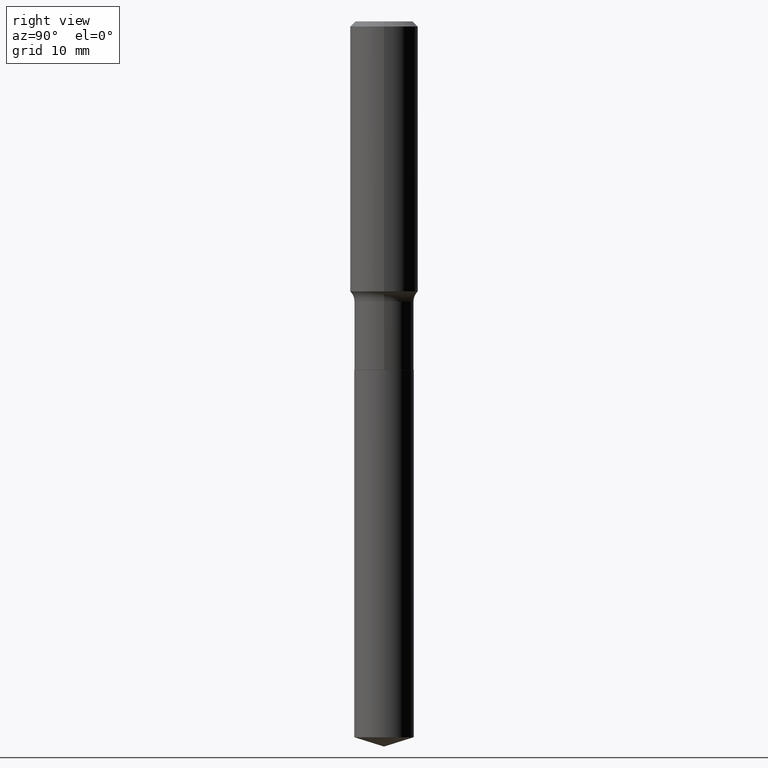
[diagram: clean part render]
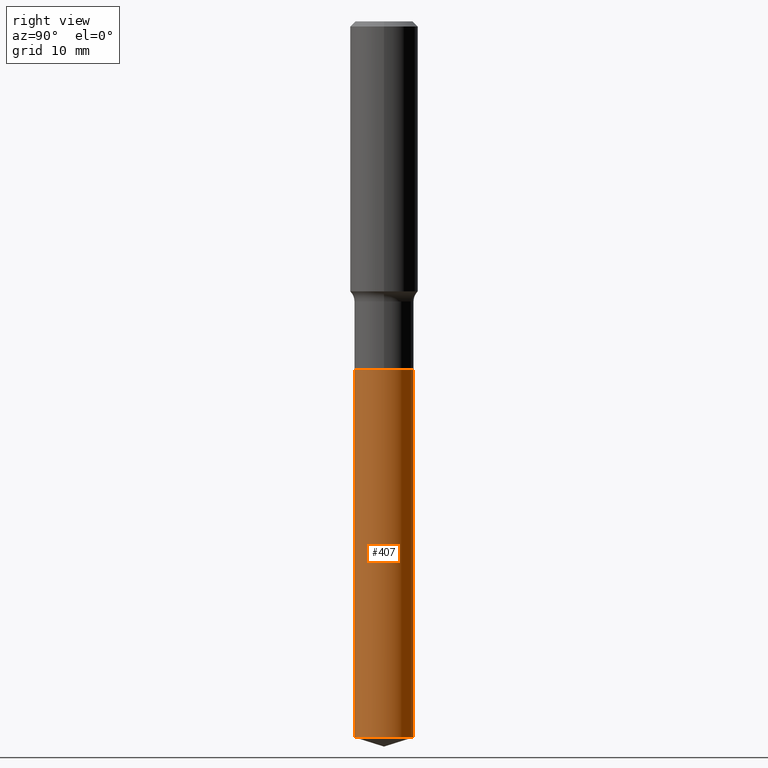
[diagram: same view with one face highlighted and labeled with its STEP entity id]
A machine part, right view. The second image highlights one B-rep face of the part: STEP entity #407.
In plain terms, the highlighted cylindrical surface (edge-blend (fillet) strip) has radius 4.1669 mm, axis along (-0, 0, 1).
Its self-contained STEP definition (entity closure, byte-faithful):
#1 = DIRECTION ( 'NONE',  ( -2.445654235410760522E-29, 3.491215793638075751E-15, 1.000000000000000000 ) ) ;
#17 = CARTESIAN_POINT ( 'NONE',  ( 4.699946498607213813E-29, -6.710277985122640475E-15, -1.921899999999999720 ) ) ;
#20 = VERTEX_POINT ( 'NONE', #302 ) ;
#41 = AXIS2_PLACEMENT_3D ( 'NONE', #17, #258, #247 ) ;
#45 = EDGE_CURVE ( 'NONE', #291, #20, #372, .T. ) ;
#47 = CARTESIAN_POINT ( 'NONE',  ( 4.699946498607213813E-29, -6.710277985122640475E-15, -1.921899999999999720 ) ) ;
#87 = DIRECTION ( 'NONE',  ( -2.445654235410760242E-29, 3.491215793638075751E-15, 1.000000000000000000 ) ) ;
#93 = CARTESIAN_POINT ( 'NONE',  ( -1.145555027274384725E-15, -0.1640500000000067182, -1.921899999999999276 ) ) ;
#100 = EDGE_LOOP ( 'NONE', ( #322, #398, #155, #447 ) ) ;
#112 = VECTOR ( 'NONE', #416, 39.37007874015748143 ) ;
#119 = DIRECTION ( 'NONE',  ( -6.982962677686265133E-15, -1.000000000000000000, 3.330506545156066257E-15 ) ) ;
#121 = DIRECTION ( 'NONE',  ( -2.445654235410760522E-29, 3.491215793638075751E-15, 1.000000000000000000 ) ) ;
#145 = EDGE_CURVE ( 'NONE', #468, #291, #177, .T. ) ;
#155 = ORIENTED_EDGE ( 'NONE', *, *, #257, .F. ) ;
#159 = EDGE_CURVE ( 'NONE', #468, #363, #430, .T. ) ;
#177 = CIRCLE ( 'NONE', #210, 0.1640500000000000014 ) ;
#210 = AXIS2_PLACEMENT_3D ( 'NONE', #281, #1, #343 ) ;
#247 = DIRECTION ( 'NONE',  ( -6.982962677686265133E-15, -1.000000000000000000, 3.330506545156066257E-15 ) ) ;
#257 = EDGE_CURVE ( 'NONE', #363, #20, #471, .T. ) ;
#258 = DIRECTION ( 'NONE',  ( -2.445654235410760522E-29, 3.491215793638075751E-15, 1.000000000000000000 ) ) ;
#266 = AXIS2_PLACEMENT_3D ( 'NONE', #47, #121, #119 ) ;
#268 = CARTESIAN_POINT ( 'NONE',  ( 1.165645358014491105E-15, 0.1640499999999932568, -1.921900000000000386 ) ) ;
#281 = CARTESIAN_POINT ( 'NONE',  ( 9.655759671398943871E-29, -1.378479120479867509E-14, -3.948275233684402696 ) ) ;
#291 = VERTEX_POINT ( 'NONE', #454 ) ;
#302 = CARTESIAN_POINT ( 'NONE',  ( 1.165645358014540803E-15, 0.1640499999999932568, -1.921900000000000386 ) ) ;
#322 = ORIENTED_EDGE ( 'NONE', *, *, #145, .T. ) ;
#326 = FACE_OUTER_BOUND ( 'NONE', #100, .T. ) ;
#343 = DIRECTION ( 'NONE',  ( -6.982962677686265133E-15, -1.000000000000000000, 3.330506545156066257E-15 ) ) ;
#352 = CYLINDRICAL_SURFACE ( 'NONE', #41, 0.1640500000000000014 ) ;
#363 = VERTEX_POINT ( 'NONE', #93 ) ;
#372 = LINE ( 'NONE', #268, #112 ) ;
#398 = ORIENTED_EDGE ( 'NONE', *, *, #45, .T. ) ;
#407 = ADVANCED_FACE ( 'NONE', ( #326 ), #352, .T. ) ;
#416 = DIRECTION ( 'NONE',  ( -2.445654235410760242E-29, 3.491215793638075751E-15, 1.000000000000000000 ) ) ;
#424 = CARTESIAN_POINT ( 'NONE',  ( -1.145555027274384725E-15, -0.1640500000000067182, -1.921899999999999276 ) ) ;
#430 = LINE ( 'NONE', #424, #436 ) ;
#436 = VECTOR ( 'NONE', #87, 39.37007874015748143 ) ;
#447 = ORIENTED_EDGE ( 'NONE', *, *, #159, .F. ) ;
#454 = CARTESIAN_POINT ( 'NONE',  ( 1.165645358014540803E-15, 0.1640499999999862346, -3.948275233684403585 ) ) ;
#468 = VERTEX_POINT ( 'NONE', #476 ) ;
#471 = CIRCLE ( 'NONE', #266, 0.1640500000000000014 ) ;
#476 = CARTESIAN_POINT ( 'NONE',  ( -1.145555027274335422E-15, -0.1640500000000138237, -3.948275233684402252 ) ) ;